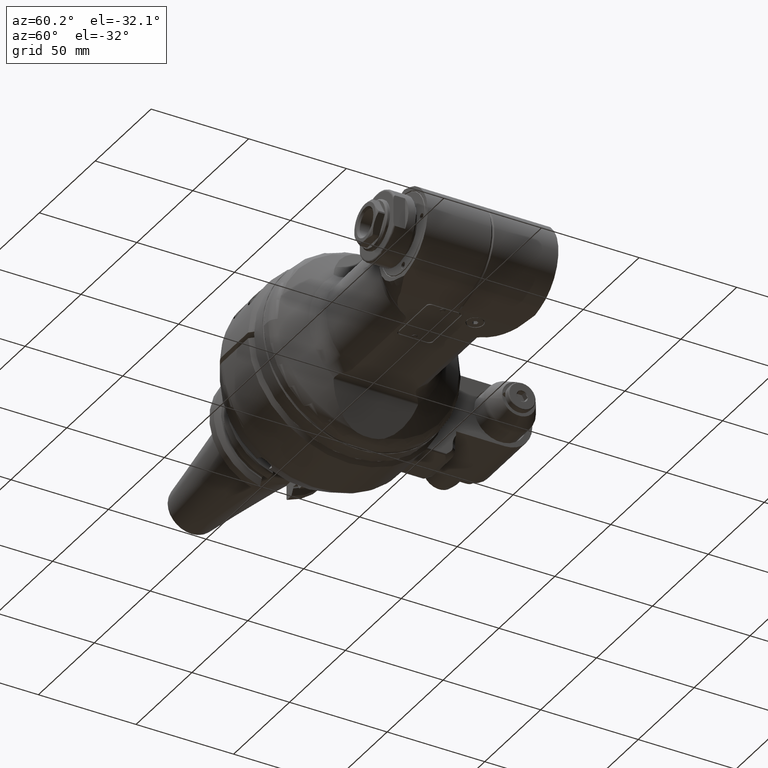
[diagram: clean part render]
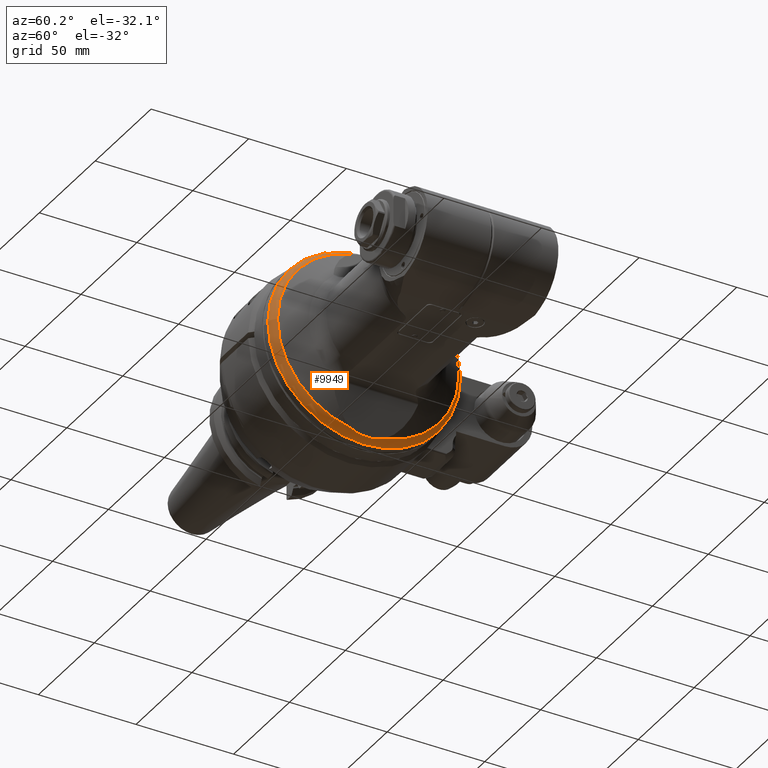
[diagram: same view with one face highlighted and labeled with its STEP entity id]
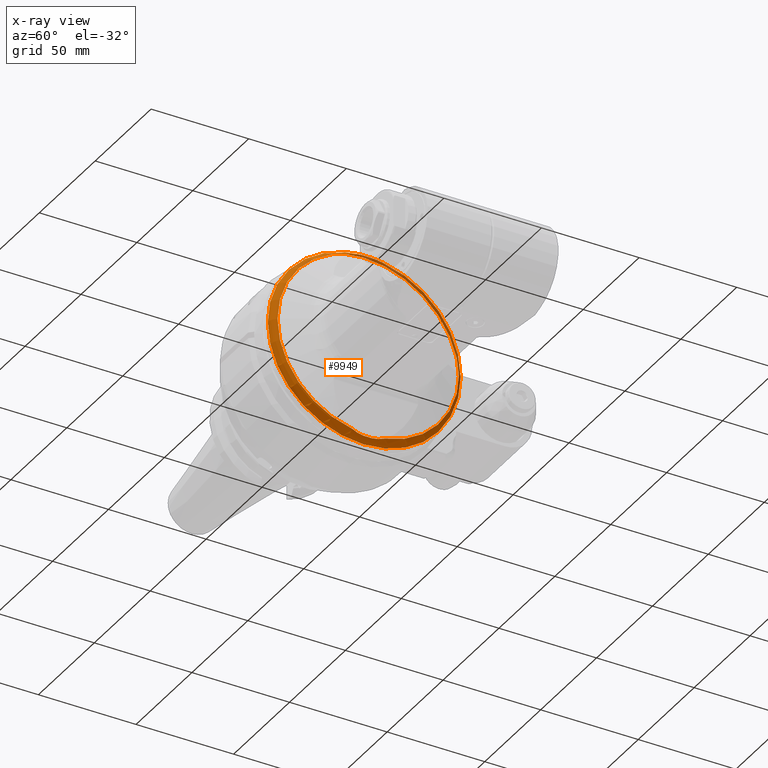
[diagram: x-ray of the same camera — body ghosted, the highlighted face saturated]
A machine part, auxiliary view. The second image highlights one B-rep face of the part: STEP entity #9949.
The next image is the same camera in x-ray: the body ghosted, the highlighted face saturated — about 11% of this face is hidden behind the body in this view.
In plain terms, the highlighted toroidal blend (fillet) surface has major radius 44 mm and minor (blend) radius 5 mm.
Its self-contained STEP definition (entity closure, byte-faithful):
#77=B_SPLINE_CURVE_WITH_KNOTS('',3,(#15311,#15312,#15313,#15314,#15315,
#15316,#15317,#15318,#15319,#15320),.UNSPECIFIED.,.F.,.F.,(4,2,2,2,4),(-2.66047980361547,
-2.55491938589005,-1.86220819496479,-1.16949700403954,-1.06393658631412),
 .UNSPECIFIED.);
#82=B_SPLINE_CURVE_WITH_KNOTS('',3,(#15376,#15377,#15378,#15379,#15380,
#15381,#15382,#15383,#15384,#15385),.UNSPECIFIED.,.F.,.F.,(4,2,2,2,4),(1.0639365863142,
1.16949700403954,1.86220819496479,2.55491938589005,2.6604798036149),
 .UNSPECIFIED.);
#177=TOROIDAL_SURFACE('',#10715,44.,5.);
#2224=FACE_OUTER_BOUND('',#2865,.T.);
#2865=EDGE_LOOP('',(#6905,#6906,#6907,#6908,#6909,#6910,#6911,#6912));
#3594=CIRCLE('',#10706,46.5);
#3595=CIRCLE('',#10707,46.5);
#3596=CIRCLE('',#10713,46.5);
#3598=CIRCLE('',#10716,49.);
#3599=CIRCLE('',#10717,5.);
#4191=VERTEX_POINT('',#15307);
#4192=VERTEX_POINT('',#15309);
#4195=VERTEX_POINT('',#15333);
#4196=VERTEX_POINT('',#15335);
#4201=VERTEX_POINT('',#15374);
#4202=VERTEX_POINT('',#15390);
#5245=EDGE_CURVE('',#4192,#4191,#77,.T.);
#5248=EDGE_CURVE('',#4195,#4191,#3594,.T.);
#5249=EDGE_CURVE('',#4196,#4195,#3595,.T.);
#5257=EDGE_CURVE('',#4201,#4196,#82,.T.);
#5258=EDGE_CURVE('',#4192,#4201,#3596,.T.);
#5260=EDGE_CURVE('',#4202,#4202,#3598,.T.);
#5261=EDGE_CURVE('',#4202,#4195,#3599,.T.);
#6905=ORIENTED_EDGE('',*,*,#5260,.T.);
#6906=ORIENTED_EDGE('',*,*,#5261,.T.);
#6907=ORIENTED_EDGE('',*,*,#5248,.T.);
#6908=ORIENTED_EDGE('',*,*,#5245,.F.);
#6909=ORIENTED_EDGE('',*,*,#5258,.T.);
#6910=ORIENTED_EDGE('',*,*,#5257,.T.);
#6911=ORIENTED_EDGE('',*,*,#5249,.T.);
#6912=ORIENTED_EDGE('',*,*,#5261,.F.);
#9949=ADVANCED_FACE('',(#2224),#177,.T.);
#10706=AXIS2_PLACEMENT_3D('',#15334,#12082,#12083);
#10707=AXIS2_PLACEMENT_3D('',#15336,#12084,#12085);
#10713=AXIS2_PLACEMENT_3D('',#15387,#12098,#12099);
#10715=AXIS2_PLACEMENT_3D('',#15389,#12102,#12103);
#10716=AXIS2_PLACEMENT_3D('',#15391,#12104,#12105);
#10717=AXIS2_PLACEMENT_3D('',#15392,#12106,#12107);
#12082=DIRECTION('center_axis',(-1.,0.,0.));
#12083=DIRECTION('ref_axis',(0.,-0.177495530843392,-0.984121606576455));
#12084=DIRECTION('center_axis',(-1.,0.,0.));
#12085=DIRECTION('ref_axis',(0.,-0.177495530843392,-0.984121606576455));
#12098=DIRECTION('center_axis',(-1.,0.,0.));
#12099=DIRECTION('ref_axis',(0.,1.,0.));
#12102=DIRECTION('center_axis',(-1.,0.,0.));
#12103=DIRECTION('ref_axis',(0.,1.,0.));
#12104=DIRECTION('center_axis',(1.,0.,0.));
#12105=DIRECTION('ref_axis',(0.,-1.,0.));
#12106=DIRECTION('center_axis',(0.,1.22464679914735E-16,1.));
#12107=DIRECTION('ref_axis',(0.,-1.,1.22464679914735E-16));
#15307=CARTESIAN_POINT('',(20.44337571763,-8.253542184218,45.7616547058));
#15309=CARTESIAN_POINT('',(20.44337571763,8.253542184218,45.7616547058));
#15311=CARTESIAN_POINT('Ctrl Pts',(20.4433757176352,8.25354218421699,45.7616547057999));
#15312=CARTESIAN_POINT('Ctrl Pts',(20.38202033743,7.9176169654829,45.9302272274759));
#15313=CARTESIAN_POINT('Ctrl Pts',(20.3286442922213,7.5498353437811,46.0768767064267));
#15314=CARTESIAN_POINT('Ctrl Pts',(20.00800054598,5.05955185517031,46.9578381589137));
#15315=CARTESIAN_POINT('Ctrl Pts',(19.8934108308826,2.30903730308418,47.2726708136457));
#15316=CARTESIAN_POINT('Ctrl Pts',(19.8934108308826,-2.30903730308418,47.2726708136457));
#15317=CARTESIAN_POINT('Ctrl Pts',(20.00800054598,-5.05955185517031,46.9578381589137));
#15318=CARTESIAN_POINT('Ctrl Pts',(20.3286442922213,-7.5498353437811,46.0768767064266));
#15319=CARTESIAN_POINT('Ctrl Pts',(20.38202033743,-7.91761696548291,45.9302272274759));
#15320=CARTESIAN_POINT('Ctrl Pts',(20.4433757176352,-8.253542184217,45.7616547057999));
#15333=CARTESIAN_POINT('',(20.44337571763,-46.5,5.69460761603519E-15));
#15334=CARTESIAN_POINT('Origin',(20.44337571763,0.,0.));
#15335=CARTESIAN_POINT('',(20.44337571763,-8.253542184216,-45.76165470581));
#15336=CARTESIAN_POINT('Origin',(20.44337571763,0.,0.));
#15374=CARTESIAN_POINT('',(20.44337571763,8.253542184217,-45.7616547058));
#15376=CARTESIAN_POINT('Ctrl Pts',(20.4433757176351,8.25354218421622,-45.7616547058003));
#15377=CARTESIAN_POINT('Ctrl Pts',(20.3820203374299,7.91761696548234,-45.9302272274761));
#15378=CARTESIAN_POINT('Ctrl Pts',(20.3286442922212,7.54983534378084,-46.0768767064267));
#15379=CARTESIAN_POINT('Ctrl Pts',(20.00800054598,5.05955185517031,-46.9578381589137));
#15380=CARTESIAN_POINT('Ctrl Pts',(19.8934108308826,2.30903730308418,-47.2726708136457));
#15381=CARTESIAN_POINT('Ctrl Pts',(19.8934108308826,-2.30903730308418,-47.2726708136457));
#15382=CARTESIAN_POINT('Ctrl Pts',(20.00800054598,-5.05955185517031,-46.9578381589137));
#15383=CARTESIAN_POINT('Ctrl Pts',(20.328644292221,-7.54983534377932,-46.0768767064273));
#15384=CARTESIAN_POINT('Ctrl Pts',(20.3820203374294,-7.91761696547893,-45.9302272274775));
#15385=CARTESIAN_POINT('Ctrl Pts',(20.4433757176342,-8.25354218421154,-45.7616547058027));
#15387=CARTESIAN_POINT('Origin',(20.44337571763,0.,0.));
#15389=CARTESIAN_POINT('Origin',(16.11324869871,0.,0.));
#15390=CARTESIAN_POINT('',(16.11324869871,-49.,6.00076931582203E-15));
#15391=CARTESIAN_POINT('Origin',(16.11324869871,0.,0.));
#15392=CARTESIAN_POINT('Origin',(16.11324869871,-44.,5.38844591624836E-15));